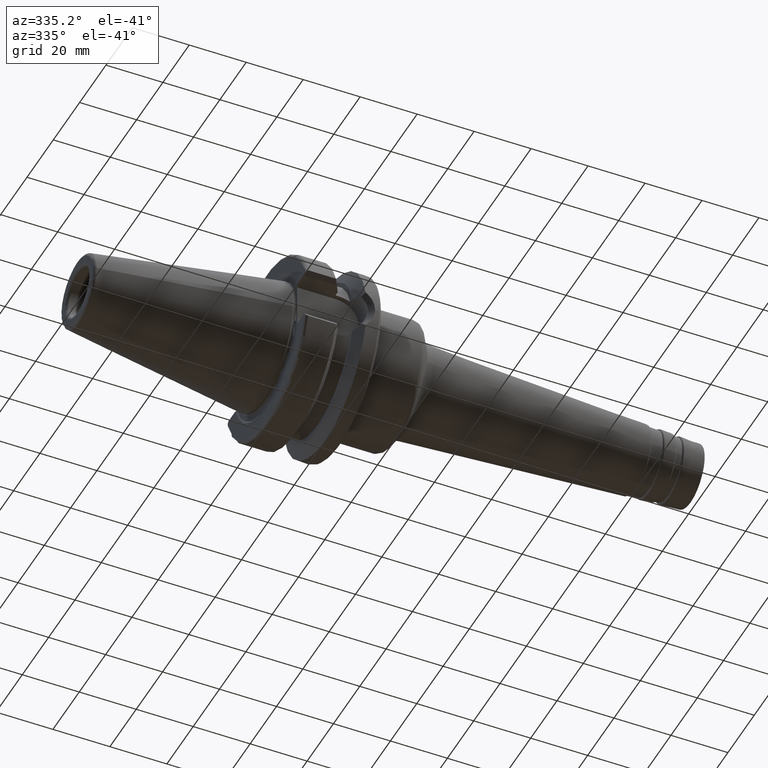
[diagram: clean part render]
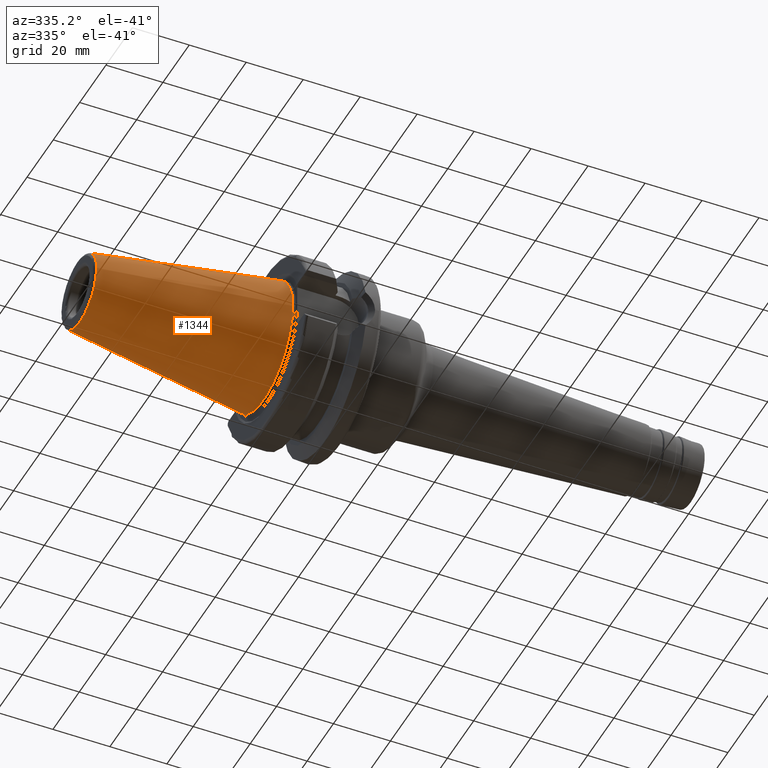
[diagram: same view with one face highlighted and labeled with its STEP entity id]
A machine part, auxiliary view. The second image highlights one B-rep face of the part: STEP entity #1344.
In plain terms, the highlighted conical surface has half-angle 8.297 deg.
Its self-contained STEP definition (entity closure, byte-faithful):
#165=LINE('',#2617,#236);
#236=VECTOR('',#1955,17.5186442890469);
#259=CONICAL_SURFACE('',#1538,17.5186442890469,0.144812498238939);
#340=FACE_OUTER_BOUND('',#429,.T.);
#429=EDGE_LOOP('',(#1226,#1227,#1228,#1229,#1230));
#520=CIRCLE('',#1535,12.8122885780937);
#521=CIRCLE('',#1536,12.8122885780937);
#523=CIRCLE('',#1539,22.225);
#644=VERTEX_POINT('',#2609);
#645=VERTEX_POINT('',#2610);
#646=VERTEX_POINT('',#2615);
#838=EDGE_CURVE('',#644,#645,#520,.T.);
#839=EDGE_CURVE('',#645,#644,#521,.T.);
#841=EDGE_CURVE('',#646,#646,#523,.T.);
#842=EDGE_CURVE('',#646,#644,#165,.T.);
#1226=ORIENTED_EDGE('',*,*,#841,.F.);
#1227=ORIENTED_EDGE('',*,*,#842,.T.);
#1228=ORIENTED_EDGE('',*,*,#838,.T.);
#1229=ORIENTED_EDGE('',*,*,#839,.T.);
#1230=ORIENTED_EDGE('',*,*,#842,.F.);
#1344=ADVANCED_FACE('',(#340),#259,.T.);
#1535=AXIS2_PLACEMENT_3D('',#2611,#1945,#1946);
#1536=AXIS2_PLACEMENT_3D('',#2612,#1947,#1948);
#1538=AXIS2_PLACEMENT_3D('',#2614,#1951,#1952);
#1539=AXIS2_PLACEMENT_3D('',#2616,#1953,#1954);
#1945=DIRECTION('center_axis',(1.,0.,0.));
#1946=DIRECTION('ref_axis',(0.,0.,-1.));
#1947=DIRECTION('center_axis',(1.,0.,0.));
#1948=DIRECTION('ref_axis',(0.,0.,-1.));
#1951=DIRECTION('center_axis',(1.,0.,0.));
#1952=DIRECTION('ref_axis',(0.,1.,0.));
#1953=DIRECTION('center_axis',(1.,0.,0.));
#1954=DIRECTION('ref_axis',(0.,0.,-1.));
#1955=DIRECTION('',(-0.989532981063281,0.144306893071729,1.76724974695192E-17));
#2609=CARTESIAN_POINT('',(-64.5443068930717,-12.8122885780937,-1.56905281969147E-15));
#2610=CARTESIAN_POINT('',(-64.5443068930717,-1.56905281969147E-15,12.8122885780937));
#2611=CARTESIAN_POINT('Origin',(-64.5443068930717,0.,0.));
#2612=CARTESIAN_POINT('Origin',(-64.5443068930717,0.,0.));
#2614=CARTESIAN_POINT('Origin',(-32.2721534465359,0.,0.));
#2615=CARTESIAN_POINT('',(4.44089209850063E-15,-22.225,-2.72177751110499E-15));
#2616=CARTESIAN_POINT('Origin',(0.,0.,0.));
#2617=CARTESIAN_POINT('',(-32.2721534465359,-17.5186442890469,-2.14541516539823E-15));